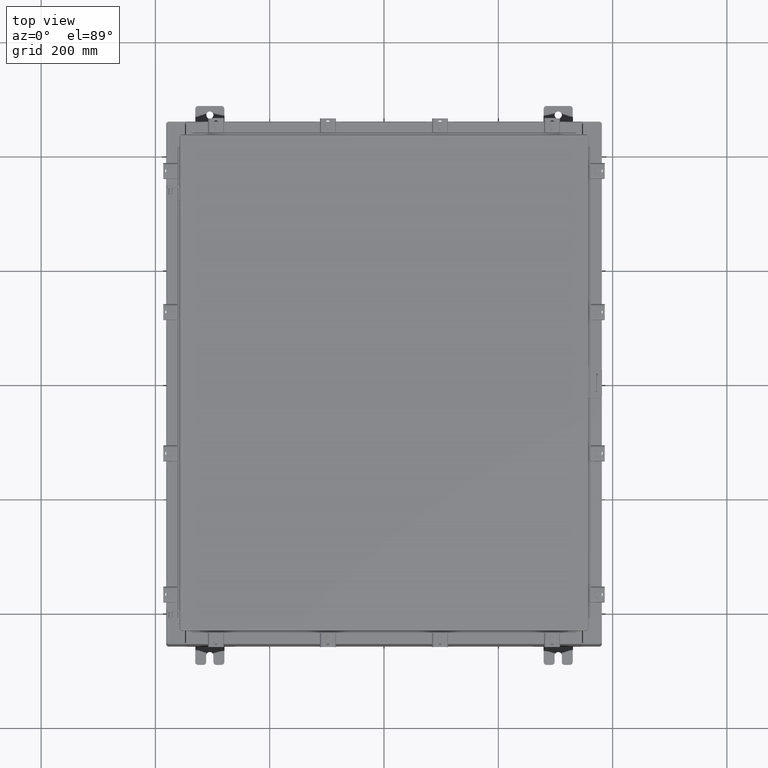
[diagram: clean part render]
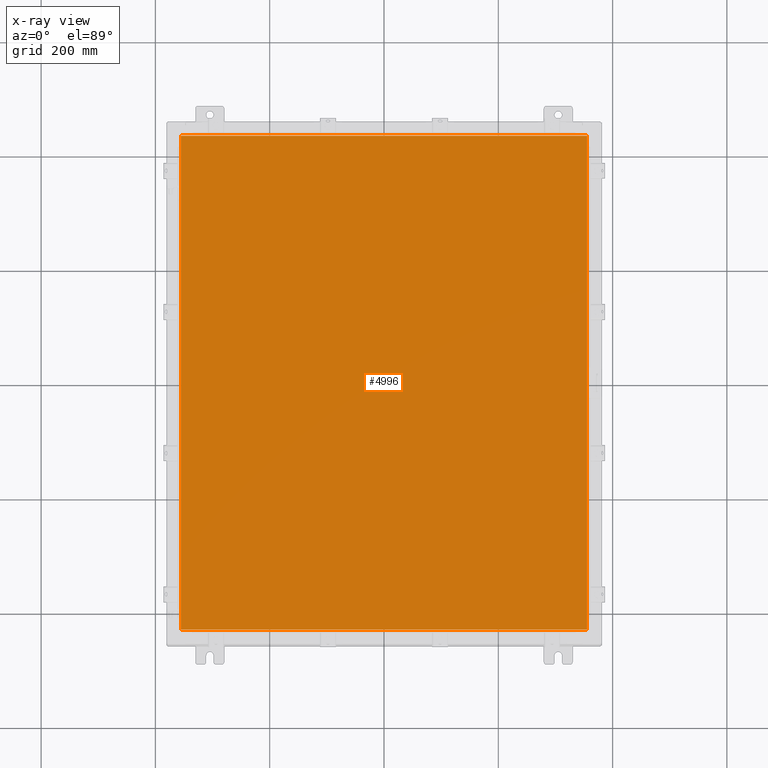
[diagram: x-ray — body ghosted, one internal face saturated and labeled with its STEP entity id]
A machine part, top view, then the same camera in x-ray: the body is ghosted and one INTERNAL B-rep face — a face not visible from any outside direction — is saturated and labeled: STEP entity #4996.
In plain terms, the highlighted planar face has unit normal (0, 0, -1).
Its self-contained STEP definition (entity closure, byte-faithful):
#1018 = VECTOR ( 'NONE', #11594, 39.37007874015748100 ) ;
#1793 = VERTEX_POINT ( 'NONE', #8348 ) ;
#2879 = CARTESIAN_POINT ( 'NONE',  ( 13.99029999999999600, 17.00629999999999600, -0.07469999999999910000 ) ) ;
#3228 = CARTESIAN_POINT ( 'NONE',  ( 13.99029999999999800, -17.00630000000000300, -0.07470000000000000300 ) ) ;
#4008 = VERTEX_POINT ( 'NONE', #3228 ) ;
#4481 = LINE ( 'NONE', #15285, #8008 ) ;
#4967 = EDGE_CURVE ( 'NONE', #19214, #4008, #4481, .T. ) ;
#4996 = ADVANCED_FACE ( 'NONE', ( #16700 ), #14490, .T. ) ;
#5803 = LINE ( 'NONE', #12469, #9900 ) ;
#6584 = CARTESIAN_POINT ( 'NONE',  ( -13.99030000000000000, 17.00629999999999600, -0.07470000000000000300 ) ) ;
#6799 = DIRECTION ( 'NONE',  ( 0.0000000000000000000, 1.000000000000000000, 0.0000000000000000000 ) ) ;
#7614 = ORIENTED_EDGE ( 'NONE', *, *, #16473, .F. ) ;
#8008 = VECTOR ( 'NONE', #15413, 39.37007874015748100 ) ;
#8348 = CARTESIAN_POINT ( 'NONE',  ( 13.99029999999999800, 17.00629999999999600, -0.07470000000000000300 ) ) ;
#9601 = EDGE_LOOP ( 'NONE', ( #7614, #20104, #12690, #16757 ) ) ;
#9900 = VECTOR ( 'NONE', #21117, 39.37007874015748100 ) ;
#10293 = CARTESIAN_POINT ( 'NONE',  ( 13.99029999999999800, -17.00630000000000700, -0.07470000000000019700 ) ) ;
#11279 = AXIS2_PLACEMENT_3D ( 'NONE', #14448, #14379, #14350 ) ;
#11594 = DIRECTION ( 'NONE',  ( -1.000000000000000000, -0.0000000000000000000, -0.0000000000000000000 ) ) ;
#12237 = EDGE_CURVE ( 'NONE', #1793, #13837, #18384, .T. ) ;
#12469 = CARTESIAN_POINT ( 'NONE',  ( -13.99030000000000000, 17.00630000000000000, -0.07470000000000019700 ) ) ;
#12608 = VECTOR ( 'NONE', #6799, 39.37007874015748100 ) ;
#12690 = ORIENTED_EDGE ( 'NONE', *, *, #16640, .F. ) ;
#13718 = LINE ( 'NONE', #10293, #12608 ) ;
#13837 = VERTEX_POINT ( 'NONE', #6584 ) ;
#14350 = DIRECTION ( 'NONE',  ( -1.000000000000000000, 0.0000000000000000000, -0.0000000000000000000 ) ) ;
#14379 = DIRECTION ( 'NONE',  ( 0.0000000000000000000, 0.0000000000000000000, -1.000000000000000000 ) ) ;
#14448 = CARTESIAN_POINT ( 'NONE',  ( 0.0000000000000000000, 0.0000000000000000000, -0.07470000000000000300 ) ) ;
#14490 = PLANE ( 'NONE',  #11279 ) ;
#15285 = CARTESIAN_POINT ( 'NONE',  ( -13.99029999999999800, -17.00630000000000300, -0.07470000000000019700 ) ) ;
#15413 = DIRECTION ( 'NONE',  ( 1.000000000000000000, -0.0000000000000000000, -0.0000000000000000000 ) ) ;
#16473 = EDGE_CURVE ( 'NONE', #4008, #1793, #13718, .T. ) ;
#16640 = EDGE_CURVE ( 'NONE', #13837, #19214, #5803, .T. ) ;
#16700 = FACE_OUTER_BOUND ( 'NONE', #9601, .T. ) ;
#16757 = ORIENTED_EDGE ( 'NONE', *, *, #12237, .F. ) ;
#18384 = LINE ( 'NONE', #2879, #1018 ) ;
#19214 = VERTEX_POINT ( 'NONE', #21490 ) ;
#20104 = ORIENTED_EDGE ( 'NONE', *, *, #4967, .F. ) ;
#21117 = DIRECTION ( 'NONE',  ( 0.0000000000000000000, -1.000000000000000000, 0.0000000000000000000 ) ) ;
#21490 = CARTESIAN_POINT ( 'NONE',  ( -13.99030000000000000, -17.00630000000000300, -0.07470000000000000300 ) ) ;